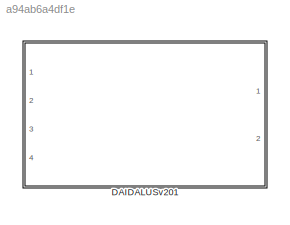
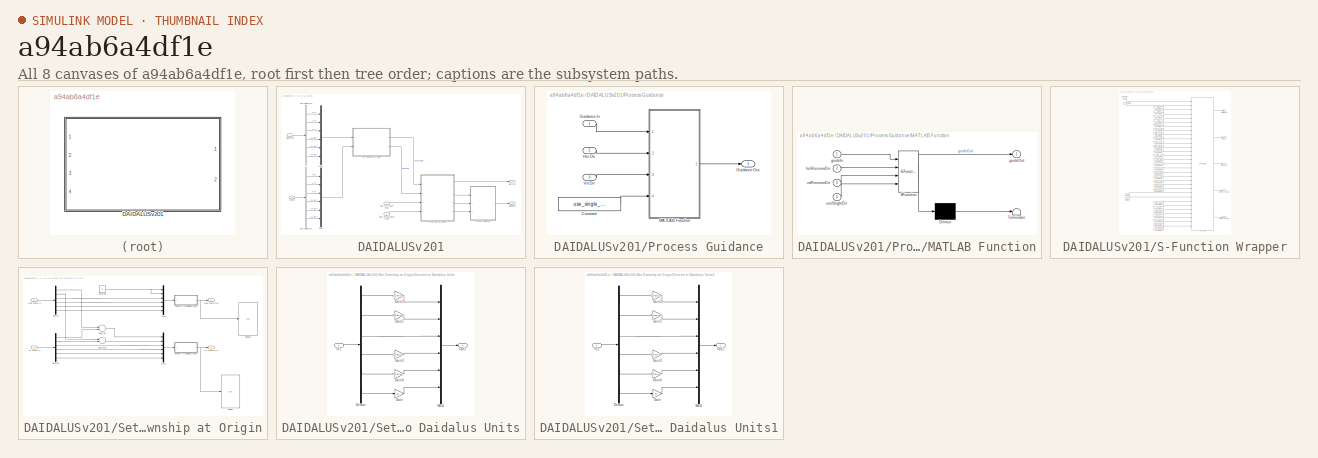
[diagram: thumbnail index - all 8 canvases of the model, root first then tree order]
MODEL slx_a94ab6a4df1e
KIND library
CONFIG AbsTol = auto
CONFIG EnableMultiTasking = off
CONFIG FixedStep = auto
CONFIG MaxStep = auto
CONFIG MinStep = auto
CONFIG RelTol = 1e-3
CONFIG SampleTimeConstraint = Unconstrained
CONFIG Solver = VariableStepAuto
CONFIG SolverName = VariableStepAuto
CONFIG StartTime = 0.0
CONFIG StopTime = 10.0
BLOCK [SubSystem] DAIDALUSv201
  Ports = [4, 2]
  RequestExecContextInheritance = off
BLOCK [Outport] DAIDALUSv201/AlertLvl
  IconDisplay = Port number
  Port = 2
BLOCK [BusSelector] DAIDALUSv201/Bus Selector1
  OutputAsBus = off
  OutputSignals = enuStateEstimate.e_ft,enuStateEstimate.n_ft,enuStateEstimate.h_ft,enuStateEstimate.de_ftps,enuStateEstimate.dn_ftps,enuStateEstimate.dh_ftps
  Ports = [1, 6]
BLOCK [BusSelector] DAIDALUSv201/Bus Selector2
  OutputAsBus = off
  OutputSignals = enuStateEstimate.e_ft,enuStateEstimate.n_ft,enuStateEstimate.h_ft,enuStateEstimate.de_ftps,enuStateEstimate.dn_ftps,enuStateEstimate.dh_ftps
  Ports = [1, 6]
BLOCK [Outport] DAIDALUSv201/Guidance
  IconDisplay = Port number
BLOCK [Inport] DAIDALUSv201/IntEst
  IconDisplay = Port number
  OutDataTypeStr = Bus: AircraftEstimate
  Port = 2
BLOCK [Inport] DAIDALUSv201/Max Turn Rate (dps)
  IconDisplay = Port number
  Port = 3
BLOCK [Inport] DAIDALUSv201/Max Vertical Rate (fpm)
  IconDisplay = Port number
  Port = 4
BLOCK [Mux] DAIDALUSv201/Mux1
  DisplayOption = bar
  Inputs = 6
  Ports = [6, 1]
BLOCK [Mux] DAIDALUSv201/Mux2
  DisplayOption = bar
  Inputs = 6
  Ports = [6, 1]
BLOCK [Inport] DAIDALUSv201/OwnState
  IconDisplay = Port number
  OutDataTypeStr = Bus: AircraftEstimate
BLOCK [SubSystem] DAIDALUSv201/Process Guidance
  Ports = [3, 1]
  RequestExecContextInheritance = off
BLOCK [Constant] DAIDALUSv201/Process Guidance/Constant
  Value = use_single_direction
BLOCK [Inport] DAIDALUSv201/Process Guidance/Guidance In
  IconDisplay = Port number
BLOCK [Outport] DAIDALUSv201/Process Guidance/Guidance Out
  IconDisplay = Port number
BLOCK [Inport] DAIDALUSv201/Process Guidance/Hrz Dir
  IconDisplay = Port number
  Port = 2
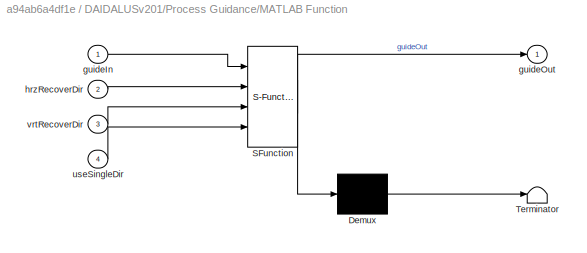
BLOCK [SubSystem] DAIDALUSv201/Process Guidance/MATLAB Function
  ErrorFcn = Stateflow.Translate.translate
  PermitHierarchicalResolution = ExplicitOnly
  Ports = [4, 1]
  RequestExecContextInheritance = off
  SFBlockType = MATLAB Function
  TreatAsAtomicUnit = on
BLOCK [Demux] DAIDALUSv201/Process Guidance/MATLAB Function/ Demux 
  Outputs = 1
  Ports = [1, 1]
BLOCK [S-Function] DAIDALUSv201/Process Guidance/MATLAB Function/ SFunction 
  EnableBusSupport = off
  FunctionName = sf_sfun
  PortCounts = [4 2]
  Ports = [4, 2]
  SFcnIsStateOwnerBlock = off
  SFunctionDeploymentMode = off
  Tag = Stateflow S-Function DaidalusV201Block 2
BLOCK [Terminator] DAIDALUSv201/Process Guidance/MATLAB Function/ Terminator 
BLOCK [Inport] DAIDALUSv201/Process Guidance/MATLAB Function/guideIn
  IconDisplay = Port number
BLOCK [Outport] DAIDALUSv201/Process Guidance/MATLAB Function/guideOut
  IconDisplay = Port number
BLOCK [Inport] DAIDALUSv201/Process Guidance/MATLAB Function/hrzRecoverDir
  IconDisplay = Port number
  Port = 2
BLOCK [Inport] DAIDALUSv201/Process Guidance/MATLAB Function/useSingleDir
  IconDisplay = Port number
  Port = 4
BLOCK [Inport] DAIDALUSv201/Process Guidance/MATLAB Function/vrtRecoverDir
  IconDisplay = Port number
  Port = 3
BLOCK [Inport] DAIDALUSv201/Process Guidance/Vrt Dir
  IconDisplay = Port number
  Port = 3
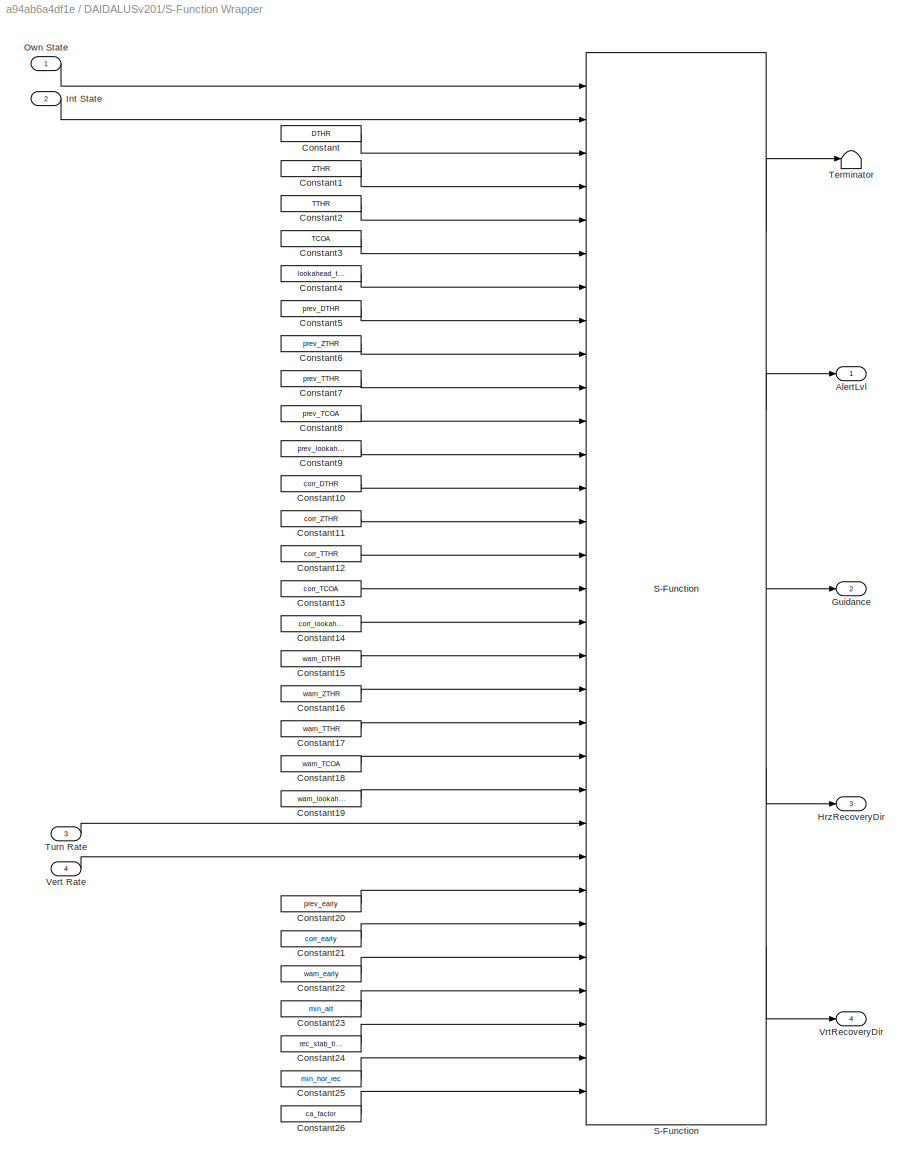
BLOCK [SubSystem] DAIDALUSv201/S-Function Wrapper
  Ports = [4, 4]
  RequestExecContextInheritance = off
BLOCK [Outport] DAIDALUSv201/S-Function Wrapper/AlertLvl
  IconDisplay = Port number
BLOCK [Constant] DAIDALUSv201/S-Function Wrapper/Constant
  Value = DTHR
BLOCK [Constant] DAIDALUSv201/S-Function Wrapper/Constant1
  Value = ZTHR
BLOCK [Constant] DAIDALUSv201/S-Function Wrapper/Constant10
  Value = corr_DTHR
BLOCK [Constant] DAIDALUSv201/S-Function Wrapper/Constant11
  Value = corr_ZTHR
BLOCK [Constant] DAIDALUSv201/S-Function Wrapper/Constant12
  Value = corr_TTHR
BLOCK [Constant] DAIDALUSv201/S-Function Wrapper/Constant13
  Value = corr_TCOA
BLOCK [Constant] DAIDALUSv201/S-Function Wrapper/Constant14
  Value = corr_lookahead
BLOCK [Constant] DAIDALUSv201/S-Function Wrapper/Constant15
  Value = warn_DTHR
BLOCK [Constant] DAIDALUSv201/S-Function Wrapper/Constant16
  Value = warn_ZTHR
BLOCK [Constant] DAIDALUSv201/S-Function Wrapper/Constant17
  Value = warn_TTHR
BLOCK [Constant] DAIDALUSv201/S-Function Wrapper/Constant18
  Value = warn_TCOA
BLOCK [Constant] DAIDALUSv201/S-Function Wrapper/Constant19
  Value = warn_lookahead
BLOCK [Constant] DAIDALUSv201/S-Function Wrapper/Constant2
  Value = TTHR
BLOCK [Constant] DAIDALUSv201/S-Function Wrapper/Constant20
  Value = prev_early
BLOCK [Constant] DAIDALUSv201/S-Function Wrapper/Constant21
  Value = corr_early
BLOCK [Constant] DAIDALUSv201/S-Function Wrapper/Constant22
  Value = warn_early
BLOCK [Constant] DAIDALUSv201/S-Function Wrapper/Constant23
  Value = min_alt
BLOCK [Constant] DAIDALUSv201/S-Function Wrapper/Constant24
  Value = rec_stab_time
BLOCK [Constant] DAIDALUSv201/S-Function Wrapper/Constant25
  Value = min_hor_rec
BLOCK [Constant] DAIDALUSv201/S-Function Wrapper/Constant26
  Value = ca_factor
BLOCK [Constant] DAIDALUSv201/S-Function Wrapper/Constant3
  Value = TCOA
BLOCK [Constant] DAIDALUSv201/S-Function Wrapper/Constant4
  Value = lookahead_time
BLOCK [Constant] DAIDALUSv201/S-Function Wrapper/Constant5
  Value = prev_DTHR
BLOCK [Constant] DAIDALUSv201/S-Function Wrapper/Constant6
  Value = prev_ZTHR
BLOCK [Constant] DAIDALUSv201/S-Function Wrapper/Constant7
  Value = prev_TTHR
BLOCK [Constant] DAIDALUSv201/S-Function Wrapper/Constant8
  Value = prev_TCOA
BLOCK [Constant] DAIDALUSv201/S-Function Wrapper/Constant9
  Value = prev_lookahead
BLOCK [Outport] DAIDALUSv201/S-Function Wrapper/Guidance
  IconDisplay = Port number
  Port = 2
BLOCK [Outport] DAIDALUSv201/S-Function Wrapper/HrzRecoveryDir
  IconDisplay = Port number
  Port = 3
BLOCK [Inport] DAIDALUSv201/S-Function Wrapper/Int State
  IconDisplay = Port number
  Port = 2
BLOCK [Inport] DAIDALUSv201/S-Function Wrapper/Own State
  IconDisplay = Port number
BLOCK [S-Function] DAIDALUSv201/S-Function Wrapper/S-Function
  EnableBusSupport = off
  FunctionName = sfnc_daidalus_alertingV201
  Ports = [31, 5]
  SFcnIsStateOwnerBlock = off
  SFunctionDeploymentMode = off
  SFunctionModules = sfnc_daidalus_alertingV201 DaidalusAlertAndGuidance
BLOCK [Terminator] DAIDALUSv201/S-Function Wrapper/Terminator
BLOCK [Inport] DAIDALUSv201/S-Function Wrapper/Turn Rate
  IconDisplay = Port number
  Port = 3
BLOCK [Inport] DAIDALUSv201/S-Function Wrapper/Vert Rate
  IconDisplay = Port number
  Port = 4
BLOCK [Outport] DAIDALUSv201/S-Function Wrapper/VrtRecoveryDir
  IconDisplay = Port number
  Port = 4
BLOCK [SubSystem] DAIDALUSv201/Set Ownship at Origin
  Ports = [2, 2]
  RequestExecContextInheritance = off
BLOCK [Constant] DAIDALUSv201/Set Ownship at Origin/Constant
  Value = 0
BLOCK [SubSystem] DAIDALUSv201/Set Ownship at Origin/Convert to Daidalus Units
  Ports = [1, 1]
  RequestExecContextInheritance = off
BLOCK [Demux] DAIDALUSv201/Set Ownship at Origin/Convert to Daidalus Units/Demux
  DisplayOption = bar
  Outputs = 6
  Ports = [1, 6]
BLOCK [Gain] DAIDALUSv201/Set Ownship at Origin/Convert to Daidalus Units/Gain
  Gain = 60
  OutDataTypeStr = Inherit: Inherit via internal rule
  ParamDataTypeStr = Inherit: Inherit via internal rule
  SaturateOnIntegerOverflow = off
BLOCK [Gain] DAIDALUSv201/Set Ownship at Origin/Convert to Daidalus Units/Gain1
  Gain = 1/DEGAS.nm2ft
  OutDataTypeStr = Inherit: Inherit via internal rule
  ParamDataTypeStr = Inherit: Inherit via internal rule
  SaturateOnIntegerOverflow = off
BLOCK [Gain] DAIDALUSv201/Set Ownship at Origin/Convert to Daidalus Units/Gain2
  Gain = 1/DEGAS.nm2ft
  OutDataTypeStr = Inherit: Inherit via internal rule
  ParamDataTypeStr = Inherit: Inherit via internal rule
  SaturateOnIntegerOverflow = off
BLOCK [Gain] DAIDALUSv201/Set Ownship at Origin/Convert to Daidalus Units/Gain3
  Gain = 1/DEGAS.kt2ftps
  OutDataTypeStr = Inherit: Inherit via internal rule
  ParamDataTypeStr = Inherit: Inherit via internal rule
  SaturateOnIntegerOverflow = off
BLOCK [Gain] DAIDALUSv201/Set Ownship at Origin/Convert to Daidalus Units/Gain4
  Gain = 1/DEGAS.kt2ftps
  OutDataTypeStr = Inherit: Inherit via internal rule
  ParamDataTypeStr = Inherit: Inherit via internal rule
  SaturateOnIntegerOverflow = off
BLOCK [Inport] DAIDALUSv201/Set Ownship at Origin/Convert to Daidalus Units/In1
  IconDisplay = Port number
BLOCK [Mux] DAIDALUSv201/Set Ownship at Origin/Convert to Daidalus Units/Mux1
  DisplayOption = bar
  Inputs = 6
  Ports = [6, 1]
BLOCK [Outport] DAIDALUSv201/Set Ownship at Origin/Convert to Daidalus Units/Out1
  IconDisplay = Port number
BLOCK [SubSystem] DAIDALUSv201/Set Ownship at Origin/Convert to Daidalus Units1
  Ports = [1, 1]
  RequestExecContextInheritance = off
BLOCK [Demux] DAIDALUSv201/Set Ownship at Origin/Convert to Daidalus Units1/Demux
  DisplayOption = bar
  Outputs = 6
  Ports = [1, 6]
BLOCK [Gain] DAIDALUSv201/Set Ownship at Origin/Convert to Daidalus Units1/Gain
  Gain = 60
  OutDataTypeStr = Inherit: Inherit via internal rule
  ParamDataTypeStr = Inherit: Inherit via internal rule
  SaturateOnIntegerOverflow = off
BLOCK [Gain] DAIDALUSv201/Set Ownship at Origin/Convert to Daidalus Units1/Gain1
  Gain = 1/DEGAS.nm2ft
  OutDataTypeStr = Inherit: Inherit via internal rule
  ParamDataTypeStr = Inherit: Inherit via internal rule
  SaturateOnIntegerOverflow = off
BLOCK [Gain] DAIDALUSv201/Set Ownship at Origin/Convert to Daidalus Units1/Gain2
  Gain = 1/DEGAS.nm2ft
  OutDataTypeStr = Inherit: Inherit via internal rule
  ParamDataTypeStr = Inherit: Inherit via internal rule
  SaturateOnIntegerOverflow = off
BLOCK [Gain] DAIDALUSv201/Set Ownship at Origin/Convert to Daidalus Units1/Gain3
  Gain = 1/DEGAS.kt2ftps
  OutDataTypeStr = Inherit: Inherit via internal rule
  ParamDataTypeStr = Inherit: Inherit via internal rule
  SaturateOnIntegerOverflow = off
BLOCK [Gain] DAIDALUSv201/Set Ownship at Origin/Convert to Daidalus Units1/Gain4
  Gain = 1/DEGAS.kt2ftps
  OutDataTypeStr = Inherit: Inherit via internal rule
  ParamDataTypeStr = Inherit: Inherit via internal rule
  SaturateOnIntegerOverflow = off
BLOCK [Inport] DAIDALUSv201/Set Ownship at Origin/Convert to Daidalus Units1/In1
  IconDisplay = Port number
BLOCK [Mux] DAIDALUSv201/Set Ownship at Origin/Convert to Daidalus Units1/Mux1
  DisplayOption = bar
  Inputs = 6
  Ports = [6, 1]
BLOCK [Outport] DAIDALUSv201/Set Ownship at Origin/Convert to Daidalus Units1/Out1
  IconDisplay = Port number
BLOCK [Demux] DAIDALUSv201/Set Ownship at Origin/Demux
  DisplayOption = bar
  Outputs = 6
  Ports = [1, 6]
BLOCK [Demux] DAIDALUSv201/Set Ownship at Origin/Demux1
  DisplayOption = bar
  Outputs = 6
  Ports = [1, 6]
BLOCK [Display] DAIDALUSv201/Set Ownship at Origin/Display
  Decimation = 1
  Ports = [1]
BLOCK [Display] DAIDALUSv201/Set Ownship at Origin/Display1
  Decimation = 1
  Ports = [1]
BLOCK [Inport] DAIDALUSv201/Set Ownship at Origin/Int State In
  IconDisplay = Port number
  Port = 2
BLOCK [Outport] DAIDALUSv201/Set Ownship at Origin/Int State Out
  IconDisplay = Port number
  Port = 2
BLOCK [Mux] DAIDALUSv201/Set Ownship at Origin/Mux
  DisplayOption = bar
  Inputs = 6
  Ports = [6, 1]
BLOCK [Mux] DAIDALUSv201/Set Ownship at Origin/Mux1
  DisplayOption = bar
  Inputs = 6
  Ports = [6, 1]
BLOCK [Inport] DAIDALUSv201/Set Ownship at Origin/Own State In
  IconDisplay = Port number
BLOCK [Outport] DAIDALUSv201/Set Ownship at Origin/Own State Out
  IconDisplay = Port number
BLOCK [Sum] DAIDALUSv201/Set Ownship at Origin/Subtract
  InputSameDT = off
  Inputs = -+
  OutDataTypeStr = Inherit: Inherit via internal rule
  Ports = [2, 1]
  SaturateOnIntegerOverflow = off
BLOCK [Sum] DAIDALUSv201/Set Ownship at Origin/Subtract1
  InputSameDT = off
  Inputs = -+
  OutDataTypeStr = Inherit: Inherit via internal rule
  Ports = [2, 1]
  SaturateOnIntegerOverflow = off
LINE DAIDALUSv201/Bus Selector1:1 -> DAIDALUSv201/Mux1:1
LINE DAIDALUSv201/Bus Selector1:2 -> DAIDALUSv201/Mux1:2
LINE DAIDALUSv201/Bus Selector1:3 -> DAIDALUSv201/Mux1:3
LINE DAIDALUSv201/Bus Selector1:4 -> DAIDALUSv201/Mux1:4
LINE DAIDALUSv201/Bus Selector1:5 -> DAIDALUSv201/Mux1:5
LINE DAIDALUSv201/Bus Selector1:6 -> DAIDALUSv201/Mux1:6
LINE DAIDALUSv201/Bus Selector2:1 -> DAIDALUSv201/Mux2:1
LINE DAIDALUSv201/Bus Selector2:2 -> DAIDALUSv201/Mux2:2
LINE DAIDALUSv201/Bus Selector2:3 -> DAIDALUSv201/Mux2:3
LINE DAIDALUSv201/Bus Selector2:4 -> DAIDALUSv201/Mux2:4
LINE DAIDALUSv201/Bus Selector2:5 -> DAIDALUSv201/Mux2:5
LINE DAIDALUSv201/Bus Selector2:6 -> DAIDALUSv201/Mux2:6
LINE DAIDALUSv201/IntEst:1 -> DAIDALUSv201/Bus Selector1:1
LINE DAIDALUSv201/Max Turn Rate (dps):1 -> DAIDALUSv201/S-Function Wrapper:3
LINE DAIDALUSv201/Max Vertical Rate (fpm):1 -> DAIDALUSv201/S-Function Wrapper:4
LINE DAIDALUSv201/Mux1:1 -> DAIDALUSv201/Set Ownship at Origin:2
LINE DAIDALUSv201/Mux2:1 -> DAIDALUSv201/Set Ownship at Origin:1
LINE DAIDALUSv201/OwnState:1 -> DAIDALUSv201/Bus Selector2:1
LINE DAIDALUSv201/Process Guidance/Constant:1 -> DAIDALUSv201/Process Guidance/MATLAB Function:4
LINE DAIDALUSv201/Process Guidance/Guidance In:1 -> DAIDALUSv201/Process Guidance/MATLAB Function:1
LINE DAIDALUSv201/Process Guidance/Hrz Dir:1 -> DAIDALUSv201/Process Guidance/MATLAB Function:2
LINE DAIDALUSv201/Process Guidance/MATLAB Function:1 -> DAIDALUSv201/Process Guidance/Guidance Out:1
LINE DAIDALUSv201/Process Guidance/Vrt Dir:1 -> DAIDALUSv201/Process Guidance/MATLAB Function:3
LINE DAIDALUSv201/Process Guidance:1 -> DAIDALUSv201/Guidance:1
LINE DAIDALUSv201/S-Function Wrapper/Constant10:1 -> DAIDALUSv201/S-Function Wrapper/S-Function:13
LINE DAIDALUSv201/S-Function Wrapper/Constant11:1 -> DAIDALUSv201/S-Function Wrapper/S-Function:14
LINE DAIDALUSv201/S-Function Wrapper/Constant12:1 -> DAIDALUSv201/S-Function Wrapper/S-Function:15
LINE DAIDALUSv201/S-Function Wrapper/Constant13:1 -> DAIDALUSv201/S-Function Wrapper/S-Function:16
LINE DAIDALUSv201/S-Function Wrapper/Constant14:1 -> DAIDALUSv201/S-Function Wrapper/S-Function:17
LINE DAIDALUSv201/S-Function Wrapper/Constant15:1 -> DAIDALUSv201/S-Function Wrapper/S-Function:18
LINE DAIDALUSv201/S-Function Wrapper/Constant16:1 -> DAIDALUSv201/S-Function Wrapper/S-Function:19
LINE DAIDALUSv201/S-Function Wrapper/Constant17:1 -> DAIDALUSv201/S-Function Wrapper/S-Function:20
LINE DAIDALUSv201/S-Function Wrapper/Constant18:1 -> DAIDALUSv201/S-Function Wrapper/S-Function:21
LINE DAIDALUSv201/S-Function Wrapper/Constant19:1 -> DAIDALUSv201/S-Function Wrapper/S-Function:22
LINE DAIDALUSv201/S-Function Wrapper/Constant1:1 -> DAIDALUSv201/S-Function Wrapper/S-Function:4
LINE DAIDALUSv201/S-Function Wrapper/Constant20:1 -> DAIDALUSv201/S-Function Wrapper/S-Function:25
LINE DAIDALUSv201/S-Function Wrapper/Constant21:1 -> DAIDALUSv201/S-Function Wrapper/S-Function:26
LINE DAIDALUSv201/S-Function Wrapper/Constant22:1 -> DAIDALUSv201/S-Function Wrapper/S-Function:27
LINE DAIDALUSv201/S-Function Wrapper/Constant23:1 -> DAIDALUSv201/S-Function Wrapper/S-Function:28
LINE DAIDALUSv201/S-Function Wrapper/Constant24:1 -> DAIDALUSv201/S-Function Wrapper/S-Function:29
LINE DAIDALUSv201/S-Function Wrapper/Constant25:1 -> DAIDALUSv201/S-Function Wrapper/S-Function:30
LINE DAIDALUSv201/S-Function Wrapper/Constant26:1 -> DAIDALUSv201/S-Function Wrapper/S-Function:31
LINE DAIDALUSv201/S-Function Wrapper/Constant2:1 -> DAIDALUSv201/S-Function Wrapper/S-Function:5
LINE DAIDALUSv201/S-Function Wrapper/Constant3:1 -> DAIDALUSv201/S-Function Wrapper/S-Function:6
LINE DAIDALUSv201/S-Function Wrapper/Constant4:1 -> DAIDALUSv201/S-Function Wrapper/S-Function:7
LINE DAIDALUSv201/S-Function Wrapper/Constant5:1 -> DAIDALUSv201/S-Function Wrapper/S-Function:8
LINE DAIDALUSv201/S-Function Wrapper/Constant6:1 -> DAIDALUSv201/S-Function Wrapper/S-Function:9
LINE DAIDALUSv201/S-Function Wrapper/Constant7:1 -> DAIDALUSv201/S-Function Wrapper/S-Function:10
LINE DAIDALUSv201/S-Function Wrapper/Constant8:1 -> DAIDALUSv201/S-Function Wrapper/S-Function:11
LINE DAIDALUSv201/S-Function Wrapper/Constant9:1 -> DAIDALUSv201/S-Function Wrapper/S-Function:12
LINE DAIDALUSv201/S-Function Wrapper/Constant:1 -> DAIDALUSv201/S-Function Wrapper/S-Function:3
LINE DAIDALUSv201/S-Function Wrapper/Int State:1 -> DAIDALUSv201/S-Function Wrapper/S-Function:2
LINE DAIDALUSv201/S-Function Wrapper/Own State:1 -> DAIDALUSv201/S-Function Wrapper/S-Function:1
LINE DAIDALUSv201/S-Function Wrapper/S-Function:1 -> DAIDALUSv201/S-Function Wrapper/Terminator:1
LINE DAIDALUSv201/S-Function Wrapper/S-Function:2 -> DAIDALUSv201/S-Function Wrapper/AlertLvl:1
LINE DAIDALUSv201/S-Function Wrapper/S-Function:3 -> DAIDALUSv201/S-Function Wrapper/Guidance:1
LINE DAIDALUSv201/S-Function Wrapper/S-Function:4 -> DAIDALUSv201/S-Function Wrapper/HrzRecoveryDir:1
LINE DAIDALUSv201/S-Function Wrapper/S-Function:5 -> DAIDALUSv201/S-Function Wrapper/VrtRecoveryDir:1
LINE DAIDALUSv201/S-Function Wrapper/Turn Rate:1 -> DAIDALUSv201/S-Function Wrapper/S-Function:23
LINE DAIDALUSv201/S-Function Wrapper/Vert Rate:1 -> DAIDALUSv201/S-Function Wrapper/S-Function:24
LINE DAIDALUSv201/S-Function Wrapper:1 -> DAIDALUSv201/AlertLvl:1
LINE DAIDALUSv201/S-Function Wrapper:2 -> DAIDALUSv201/Process Guidance:1
LINE DAIDALUSv201/S-Function Wrapper:3 -> DAIDALUSv201/Process Guidance:2
LINE DAIDALUSv201/S-Function Wrapper:4 -> DAIDALUSv201/Process Guidance:3
NET DAIDALUSv201/Set Ownship at Origin/Constant:1 -> DAIDALUSv201/Set Ownship at Origin/Mux:1, DAIDALUSv201/Set Ownship at Origin/Mux:2
LINE DAIDALUSv201/Set Ownship at Origin/Convert to Daidalus Units/Demux:1 -> DAIDALUSv201/Set Ownship at Origin/Convert to Daidalus Units/Gain1:1
LINE DAIDALUSv201/Set Ownship at Origin/Convert to Daidalus Units/Demux:2 -> DAIDALUSv201/Set Ownship at Origin/Convert to Daidalus Units/Gain2:1
LINE DAIDALUSv201/Set Ownship at Origin/Convert to Daidalus Units/Demux:3 -> DAIDALUSv201/Set Ownship at Origin/Convert to Daidalus Units/Mux1:3
LINE DAIDALUSv201/Set Ownship at Origin/Convert to Daidalus Units/Demux:4 -> DAIDALUSv201/Set Ownship at Origin/Convert to Daidalus Units/Gain3:1
LINE DAIDALUSv201/Set Ownship at Origin/Convert to Daidalus Units/Demux:5 -> DAIDALUSv201/Set Ownship at Origin/Convert to Daidalus Units/Gain4:1
LINE DAIDALUSv201/Set Ownship at Origin/Convert to Daidalus Units/Demux:6 -> DAIDALUSv201/Set Ownship at Origin/Convert to Daidalus Units/Gain:1
LINE DAIDALUSv201/Set Ownship at Origin/Convert to Daidalus Units/Gain1:1 -> DAIDALUSv201/Set Ownship at Origin/Convert to Daidalus Units/Mux1:1
LINE DAIDALUSv201/Set Ownship at Origin/Convert to Daidalus Units/Gain2:1 -> DAIDALUSv201/Set Ownship at Origin/Convert to Daidalus Units/Mux1:2
LINE DAIDALUSv201/Set Ownship at Origin/Convert to Daidalus Units/Gain3:1 -> DAIDALUSv201/Set Ownship at Origin/Convert to Daidalus Units/Mux1:4
LINE DAIDALUSv201/Set Ownship at Origin/Convert to Daidalus Units/Gain4:1 -> DAIDALUSv201/Set Ownship at Origin/Convert to Daidalus Units/Mux1:5
LINE DAIDALUSv201/Set Ownship at Origin/Convert to Daidalus Units/Gain:1 -> DAIDALUSv201/Set Ownship at Origin/Convert to Daidalus Units/Mux1:6
LINE DAIDALUSv201/Set Ownship at Origin/Convert to Daidalus Units/In1:1 -> DAIDALUSv201/Set Ownship at Origin/Convert to Daidalus Units/Demux:1
LINE DAIDALUSv201/Set Ownship at Origin/Convert to Daidalus Units/Mux1:1 -> DAIDALUSv201/Set Ownship at Origin/Convert to Daidalus Units/Out1:1
LINE DAIDALUSv201/Set Ownship at Origin/Convert to Daidalus Units1/Demux:1 -> DAIDALUSv201/Set Ownship at Origin/Convert to Daidalus Units1/Gain1:1
LINE DAIDALUSv201/Set Ownship at Origin/Convert to Daidalus Units1/Demux:2 -> DAIDALUSv201/Set Ownship at Origin/Convert to Daidalus Units1/Gain2:1
LINE DAIDALUSv201/Set Ownship at Origin/Convert to Daidalus Units1/Demux:3 -> DAIDALUSv201/Set Ownship at Origin/Convert to Daidalus Units1/Mux1:3
LINE DAIDALUSv201/Set Ownship at Origin/Convert to Daidalus Units1/Demux:4 -> DAIDALUSv201/Set Ownship at Origin/Convert to Daidalus Units1/Gain3:1
LINE DAIDALUSv201/Set Ownship at Origin/Convert to Daidalus Units1/Demux:5 -> DAIDALUSv201/Set Ownship at Origin/Convert to Daidalus Units1/Gain4:1
LINE DAIDALUSv201/Set Ownship at Origin/Convert to Daidalus Units1/Demux:6 -> DAIDALUSv201/Set Ownship at Origin/Convert to Daidalus Units1/Gain:1
LINE DAIDALUSv201/Set Ownship at Origin/Convert to Daidalus Units1/Gain1:1 -> DAIDALUSv201/Set Ownship at Origin/Convert to Daidalus Units1/Mux1:1
LINE DAIDALUSv201/Set Ownship at Origin/Convert to Daidalus Units1/Gain2:1 -> DAIDALUSv201/Set Ownship at Origin/Convert to Daidalus Units1/Mux1:2
LINE DAIDALUSv201/Set Ownship at Origin/Convert to Daidalus Units1/Gain3:1 -> DAIDALUSv201/Set Ownship at Origin/Convert to Daidalus Units1/Mux1:4
LINE DAIDALUSv201/Set Ownship at Origin/Convert to Daidalus Units1/Gain4:1 -> DAIDALUSv201/Set Ownship at Origin/Convert to Daidalus Units1/Mux1:5
LINE DAIDALUSv201/Set Ownship at Origin/Convert to Daidalus Units1/Gain:1 -> DAIDALUSv201/Set Ownship at Origin/Convert to Daidalus Units1/Mux1:6
LINE DAIDALUSv201/Set Ownship at Origin/Convert to Daidalus Units1/In1:1 -> DAIDALUSv201/Set Ownship at Origin/Convert to Daidalus Units1/Demux:1
LINE DAIDALUSv201/Set Ownship at Origin/Convert to Daidalus Units1/Mux1:1 -> DAIDALUSv201/Set Ownship at Origin/Convert to Daidalus Units1/Out1:1
NET DAIDALUSv201/Set Ownship at Origin/Convert to Daidalus Units1:1 -> DAIDALUSv201/Set Ownship at Origin/Display:1, DAIDALUSv201/Set Ownship at Origin/Int State Out:1
NET DAIDALUSv201/Set Ownship at Origin/Convert to Daidalus Units:1 -> DAIDALUSv201/Set Ownship at Origin/Display1:1, DAIDALUSv201/Set Ownship at Origin/Own State Out:1
LINE DAIDALUSv201/Set Ownship at Origin/Demux1:1 -> DAIDALUSv201/Set Ownship at Origin/Subtract:2
LINE DAIDALUSv201/Set Ownship at Origin/Demux1:2 -> DAIDALUSv201/Set Ownship at Origin/Subtract1:2
LINE DAIDALUSv201/Set Ownship at Origin/Demux1:3 -> DAIDALUSv201/Set Ownship at Origin/Mux1:3
LINE DAIDALUSv201/Set Ownship at Origin/Demux1:4 -> DAIDALUSv201/Set Ownship at Origin/Mux1:4
LINE DAIDALUSv201/Set Ownship at Origin/Demux1:5 -> DAIDALUSv201/Set Ownship at Origin/Mux1:5
LINE DAIDALUSv201/Set Ownship at Origin/Demux1:6 -> DAIDALUSv201/Set Ownship at Origin/Mux1:6
LINE DAIDALUSv201/Set Ownship at Origin/Demux:1 -> DAIDALUSv201/Set Ownship at Origin/Subtract:1
LINE DAIDALUSv201/Set Ownship at Origin/Demux:2 -> DAIDALUSv201/Set Ownship at Origin/Subtract1:1
LINE DAIDALUSv201/Set Ownship at Origin/Demux:3 -> DAIDALUSv201/Set Ownship at Origin/Mux:3
LINE DAIDALUSv201/Set Ownship at Origin/Demux:4 -> DAIDALUSv201/Set Ownship at Origin/Mux:4
LINE DAIDALUSv201/Set Ownship at Origin/Demux:5 -> DAIDALUSv201/Set Ownship at Origin/Mux:5
LINE DAIDALUSv201/Set Ownship at Origin/Demux:6 -> DAIDALUSv201/Set Ownship at Origin/Mux:6
LINE DAIDALUSv201/Set Ownship at Origin/Int State In:1 -> DAIDALUSv201/Set Ownship at Origin/Demux1:1
LINE DAIDALUSv201/Set Ownship at Origin/Mux1:1 -> DAIDALUSv201/Set Ownship at Origin/Convert to Daidalus Units1:1
LINE DAIDALUSv201/Set Ownship at Origin/Mux:1 -> DAIDALUSv201/Set Ownship at Origin/Convert to Daidalus Units:1
LINE DAIDALUSv201/Set Ownship at Origin/Own State In:1 -> DAIDALUSv201/Set Ownship at Origin/Demux:1
LINE DAIDALUSv201/Set Ownship at Origin/Subtract1:1 -> DAIDALUSv201/Set Ownship at Origin/Mux1:2
LINE DAIDALUSv201/Set Ownship at Origin/Subtract:1 -> DAIDALUSv201/Set Ownship at Origin/Mux1:1
LINE DAIDALUSv201/Set Ownship at Origin:1 -> DAIDALUSv201/S-Function Wrapper:1
LINE DAIDALUSv201/Set Ownship at Origin:2 -> DAIDALUSv201/S-Function Wrapper:2
note: NET lines group one-source signal fan-out (src -> all destinations, sorted); 1:1 wires keep LINE
CHART DAIDALUSv201/Process Guidance/MATLAB Function states=1 transitions=1
  STATE_LABEL 'eML_blk_kernel()'
  STATE_LABEL 'SCRIPT:\nfunction guideOut = fcn(guideIn, hrzRecoverDir, vrtRecoverDir, useSingleDir)\n%#codegen\n\nguideOut = DaidalusV201_ExternalFunctions.processGuidance(guideIn, hrzRecoverDir, vrtRecoverDir, useSingleDir);\n'
